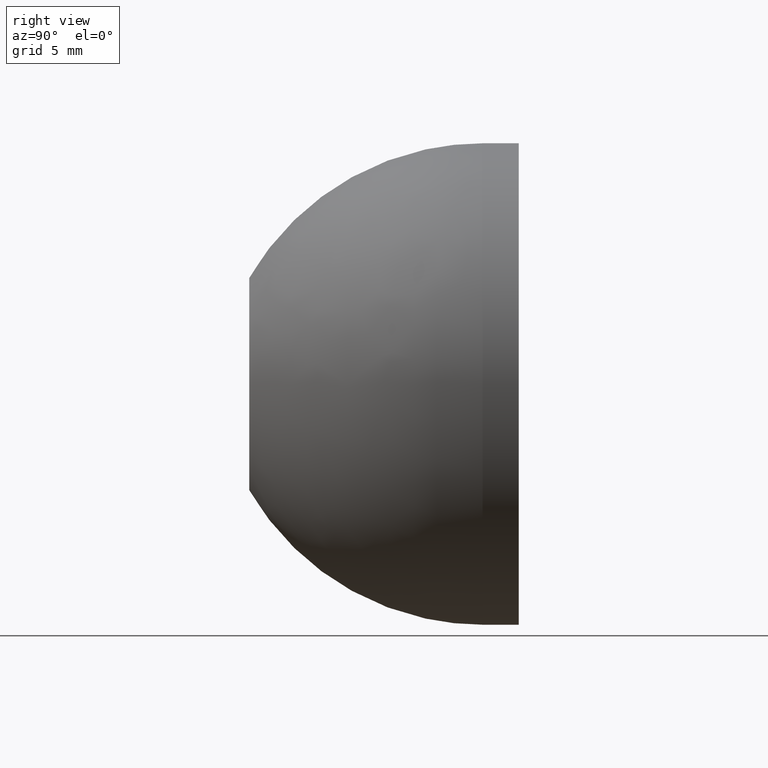
[diagram: clean part render]
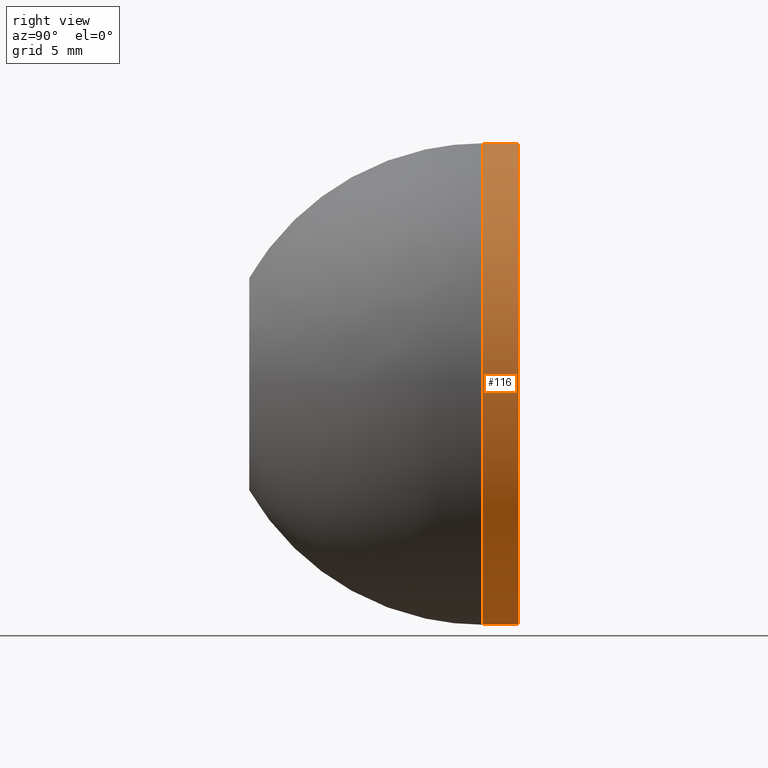
[diagram: same view with one face highlighted and labeled with its STEP entity id]
A machine part, right view. The second image highlights one B-rep face of the part: STEP entity #116.
In plain terms, the highlighted cylindrical surface (partial cylindrical patch) has radius 12.5 mm, axis along (0, -1, 0).
Its self-contained STEP definition (entity closure, byte-faithful):
#116=ADVANCED_FACE('',(#175),#174,.T.);
#174=CYLINDRICAL_SURFACE('',#352,1.25000000000E+001);
#175=FACE_OUTER_BOUND('',#353,.T.);
#349=CARTESIAN_POINT('',(0.00000000000E+000,1.30621776581E+001,0.00000000000E+000));
#350=DIRECTION('',(0.00000000000E+000,-1.00000000000E+000,-0.00000000000E+000));
#351=DIRECTION('',(1.22464679915E-016,0.00000000000E+000,1.00000000000E+000));
#352=AXIS2_PLACEMENT_3D('',#349,#350,#351);
#353=EDGE_LOOP('',(#464,#465,#466,#467));
#464=ORIENTED_EDGE('',*,*,#533,.T.);
#465=ORIENTED_EDGE('',*,*,#537,.T.);
#466=ORIENTED_EDGE('',*,*,#539,.F.);
#467=ORIENTED_EDGE('',*,*,#538,.F.);
#533=EDGE_CURVE('',#619,#618,#626,.T.);
#537=EDGE_CURVE('',#618,#646,#654,.T.);
#538=EDGE_CURVE('',#619,#647,#660,.T.);
#539=EDGE_CURVE('',#647,#646,#666,.T.);
#618=VERTEX_POINT('',#854);
#619=VERTEX_POINT('',#855);
#626=CIRCLE('',#863,1.25000000000E+001);
#646=VERTEX_POINT('',#874);
#647=VERTEX_POINT('',#875);
#654=(BOUNDED_CURVE() B_SPLINE_CURVE(1,(#880,#881),.UNSPECIFIED.,.F.,.F.) B_SPLINE_CURVE_WITH_KNOTS((2,2),(8.33333134656E-002,9.16666653270E-001),.UNSPECIFIED.) CURVE() GEOMETRIC_REPRESENTATION_ITEM() RATIONAL_B_SPLINE_CURVE((1.00000000000E+000,1.00000000000E+000)) REPRESENTATION_ITEM('') );
#660=(BOUNDED_CURVE() B_SPLINE_CURVE(1,(#882,#883),.UNSPECIFIED.,.F.,.F.) B_SPLINE_CURVE_WITH_KNOTS((2,2),(8.33333333333E-002,9.16666666667E-001),.UNSPECIFIED.) CURVE() GEOMETRIC_REPRESENTATION_ITEM() RATIONAL_B_SPLINE_CURVE((7.50000000000E-001,7.50000000000E-001)) REPRESENTATION_ITEM('') );
#666=CIRCLE('',#887,1.25000000000E+001);
#854=CARTESIAN_POINT('',(-1.18423789293E-015,1.40000000000E+001,1.25000000000E+001));
#855=CARTESIAN_POINT('',(-9.38638995811E-016,1.40000000000E+001,-1.25000000000E+001));
#860=CARTESIAN_POINT('',(0.00000000000E+000,1.40000000000E+001,0.00000000000E+000));
#861=DIRECTION('',(0.00000000000E+000,-1.00000000000E+000,0.00000000000E+000));
#862=DIRECTION('',(4.73695157174E-017,-0.00000000000E+000,-1.00000000000E+000));
#863=AXIS2_PLACEMENT_3D('',#860,#861,#862);
#874=CARTESIAN_POINT('',(1.53075794228E-015,1.21243556530E+001,1.25000000000E+001));
#875=CARTESIAN_POINT('',(5.92118946467E-016,1.21243556530E+001,-1.25000000000E+001));
#880=CARTESIAN_POINT('',(1.53080849893E-015,1.40000000447E+001,1.25000000000E+001));
#881=CARTESIAN_POINT('',(1.53080849893E-015,1.21243556832E+001,1.25000000000E+001));
#882=CARTESIAN_POINT('',(-5.92118946467E-016,1.40000000000E+001,-1.25000000000E+001));
#883=CARTESIAN_POINT('',(-5.92118946467E-016,1.21243556530E+001,-1.25000000000E+001));
#884=CARTESIAN_POINT('',(0.00000000000E+000,1.21243556530E+001,0.00000000000E+000));
#885=DIRECTION('',(0.00000000000E+000,-1.00000000000E+000,0.00000000000E+000));
#886=DIRECTION('',(-0.00000000000E+000,-0.00000000000E+000,1.00000000000E+000));
#887=AXIS2_PLACEMENT_3D('',#884,#885,#886);